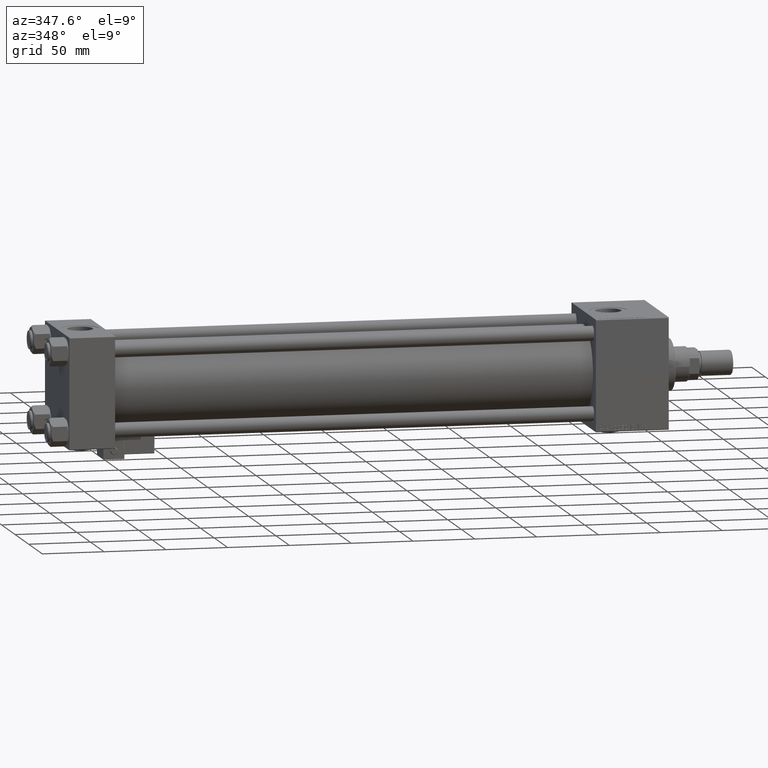
[diagram: clean part render]
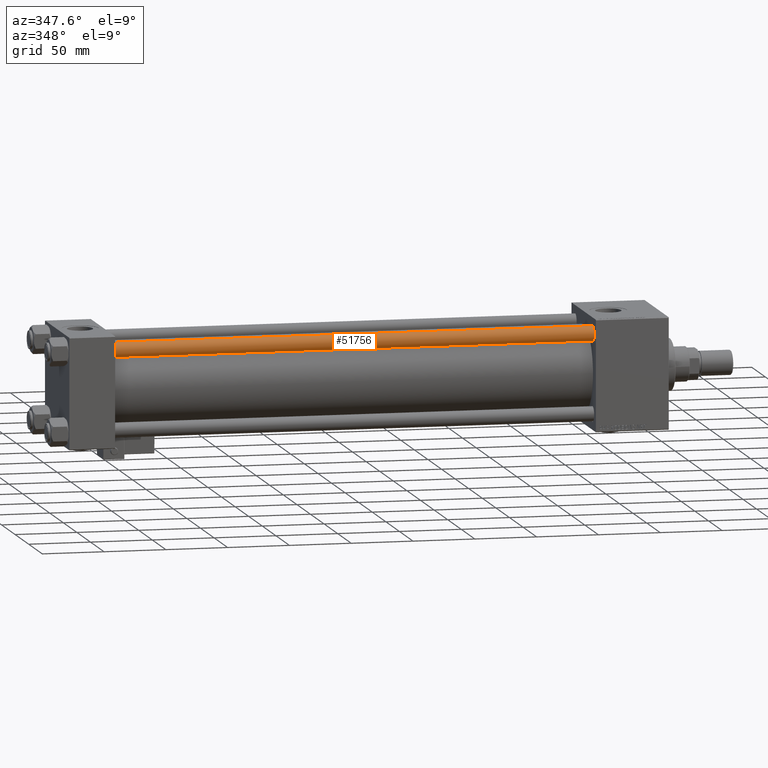
[diagram: same view with one face highlighted and labeled with its STEP entity id]
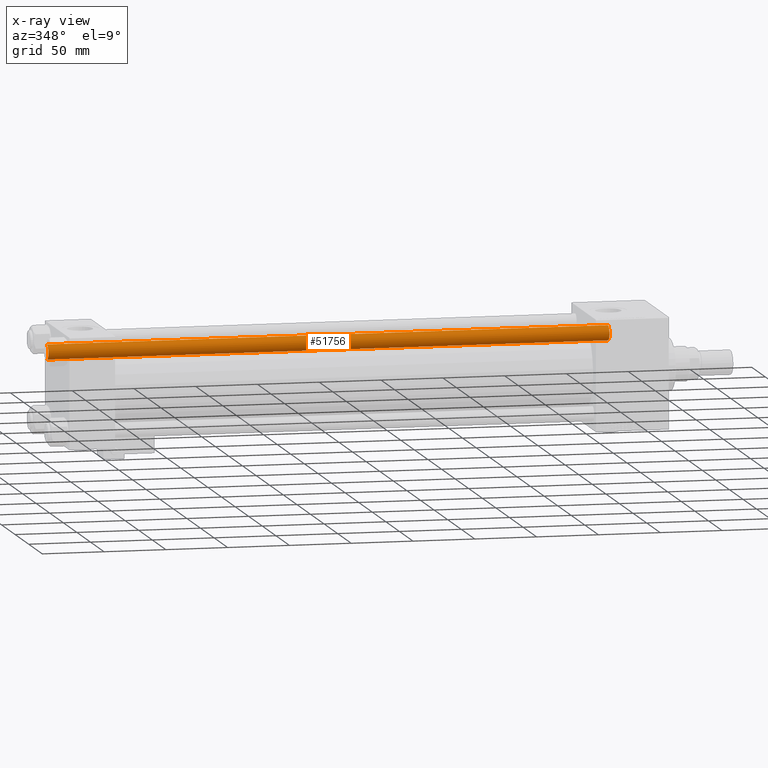
[diagram: x-ray of the same camera — body ghosted, the highlighted face saturated]
A machine part, auxiliary view. The second image highlights one B-rep face of the part: STEP entity #51756.
The next image is the same camera in x-ray: the body ghosted, the highlighted face saturated — about 0% of this face is hidden behind the body in this view.
In plain terms, the highlighted cylindrical surface (edge-blend (fillet) strip) has radius 6 mm, axis along (1, 0, -0).
Its self-contained STEP definition (entity closure, byte-faithful):
#559 = DIRECTION ( 'NONE',  ( 0.000000000000000000, 0.000000000000000000, -1.000000000000000000 ) ) ;
#5392 = CARTESIAN_POINT ( 'NONE',  ( 6.000000000000000888, 7.347880794884119736E-16, 0.5000000000002224887 ) ) ;
#5639 = ORIENTED_EDGE ( 'NONE', *, *, #51419, .T. ) ;
#5675 = ORIENTED_EDGE ( 'NONE', *, *, #12556, .F. ) ;
#7065 = CARTESIAN_POINT ( 'NONE',  ( 6.000000000000000888, 7.347880794884119736E-16, 455.0000000000000000 ) ) ;
#8790 = VERTEX_POINT ( 'NONE', #54526 ) ;
#10292 = VECTOR ( 'NONE', #38165, 1000.000000000000000 ) ;
#10962 = VERTEX_POINT ( 'NONE', #22018 ) ;
#12556 = EDGE_CURVE ( 'NONE', #38486, #8790, #13423, .T. ) ;
#12743 = DIRECTION ( 'NONE',  ( -1.000000000000000000, 0.000000000000000000, 0.000000000000000000 ) ) ;
#12991 = ORIENTED_EDGE ( 'NONE', *, *, #42278, .T. ) ;
#13423 = LINE ( 'NONE', #29828, #10292 ) ;
#15869 = AXIS2_PLACEMENT_3D ( 'NONE', #25317, #16978, #29750 ) ;
#16978 = DIRECTION ( 'NONE',  ( -0.000000000000000000, -0.000000000000000000, 1.000000000000000000 ) ) ;
#17921 = ORIENTED_EDGE ( 'NONE', *, *, #29159, .T. ) ;
#18494 = CIRCLE ( 'NONE', #45093, 6.000000000000000888 ) ;
#19287 = DIRECTION ( 'NONE',  ( -0.000000000000000000, -0.000000000000000000, -1.000000000000000000 ) ) ;
#21190 = VERTEX_POINT ( 'NONE', #5392 ) ;
#21352 = CYLINDRICAL_SURFACE ( 'NONE', #54887, 6.000000000000000888 ) ;
#22018 = CARTESIAN_POINT ( 'NONE',  ( 6.000000000000000888, 7.347880794884119736E-16, 454.5000000000002842 ) ) ;
#22210 = DIRECTION ( 'NONE',  ( 1.000000000000000000, 0.000000000000000000, 0.000000000000000000 ) ) ;
#25317 = CARTESIAN_POINT ( 'NONE',  ( 0.000000000000000000, 0.000000000000000000, 0.5000000000002224887 ) ) ;
#29159 = EDGE_CURVE ( 'NONE', #10962, #21190, #40387, .T. ) ;
#29750 = DIRECTION ( 'NONE',  ( 1.000000000000000000, 0.000000000000000000, 0.000000000000000000 ) ) ;
#29828 = CARTESIAN_POINT ( 'NONE',  ( -6.000000000000000888, 0.000000000000000000, 455.0000000000000000 ) ) ;
#29956 = CARTESIAN_POINT ( 'NONE',  ( 0.000000000000000000, 0.000000000000000000, 455.0000000000000000 ) ) ;
#34119 = DIRECTION ( 'NONE',  ( -0.000000000000000000, -0.000000000000000000, -1.000000000000000000 ) ) ;
#34692 = CARTESIAN_POINT ( 'NONE',  ( 0.000000000000000000, 0.000000000000000000, 454.5000000000002842 ) ) ;
#37151 = CIRCLE ( 'NONE', #15869, 6.000000000000000888 ) ;
#38165 = DIRECTION ( 'NONE',  ( -0.000000000000000000, -0.000000000000000000, -1.000000000000000000 ) ) ;
#38486 = VERTEX_POINT ( 'NONE', #50415 ) ;
#40387 = LINE ( 'NONE', #7065, #53590 ) ;
#42278 = EDGE_CURVE ( 'NONE', #38486, #10962, #18494, .T. ) ;
#45093 = AXIS2_PLACEMENT_3D ( 'NONE', #34692, #559, #22210 ) ;
#50415 = CARTESIAN_POINT ( 'NONE',  ( -6.000000000000000888, 0.000000000000000000, 454.5000000000002842 ) ) ;
#51067 = FACE_OUTER_BOUND ( 'NONE', #51943, .T. ) ;
#51419 = EDGE_CURVE ( 'NONE', #21190, #8790, #37151, .T. ) ;
#51756 = ADVANCED_FACE ( 'NONE', ( #51067 ), #21352, .T. ) ;
#51943 = EDGE_LOOP ( 'NONE', ( #12991, #17921, #5639, #5675 ) ) ;
#53590 = VECTOR ( 'NONE', #19287, 1000.000000000000000 ) ;
#54526 = CARTESIAN_POINT ( 'NONE',  ( -6.000000000000000888, 0.000000000000000000, 0.5000000000002224887 ) ) ;
#54887 = AXIS2_PLACEMENT_3D ( 'NONE', #29956, #34119, #12743 ) ;